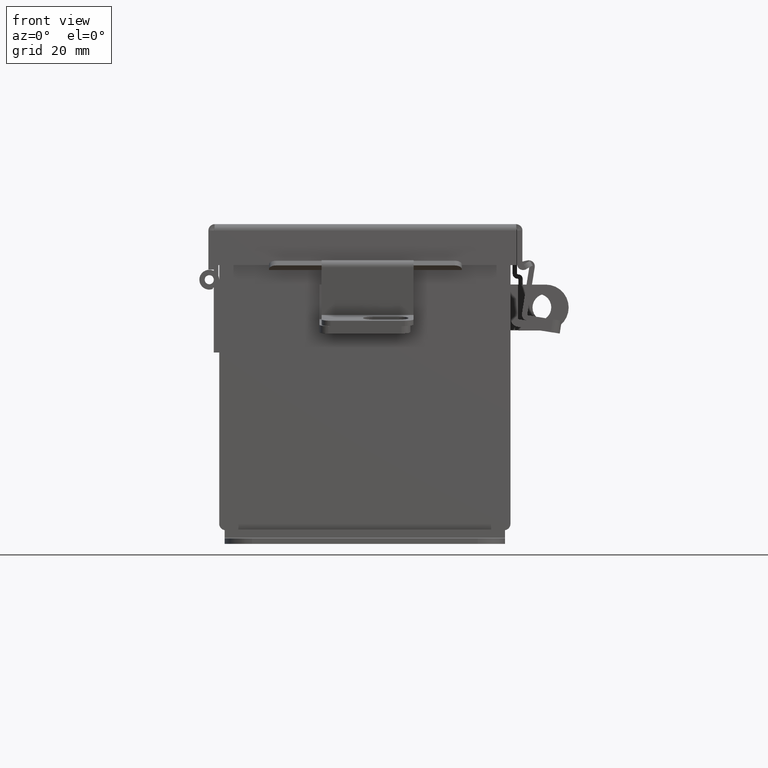
[diagram: clean part render]
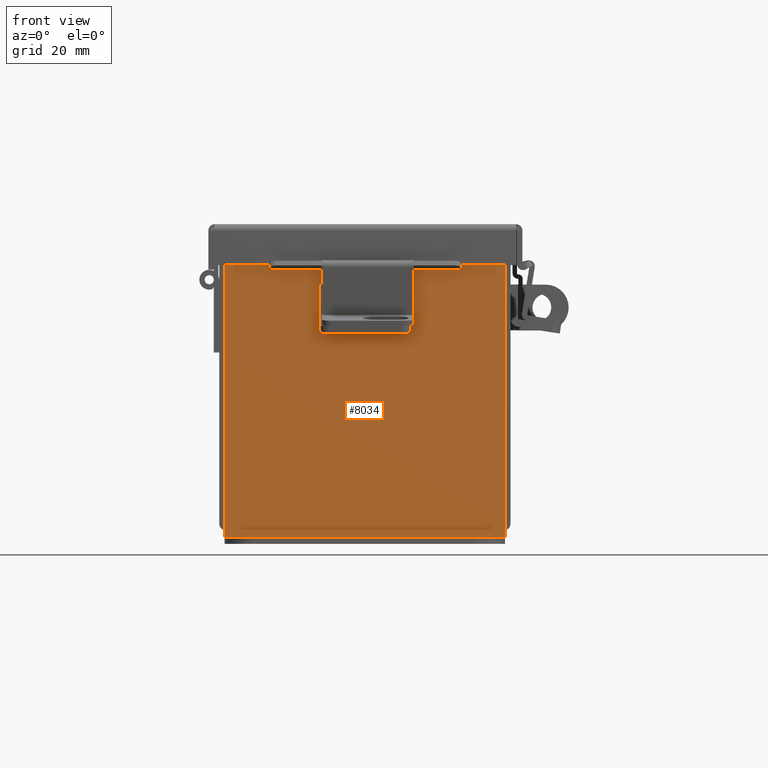
[diagram: same view with one face highlighted and labeled with its STEP entity id]
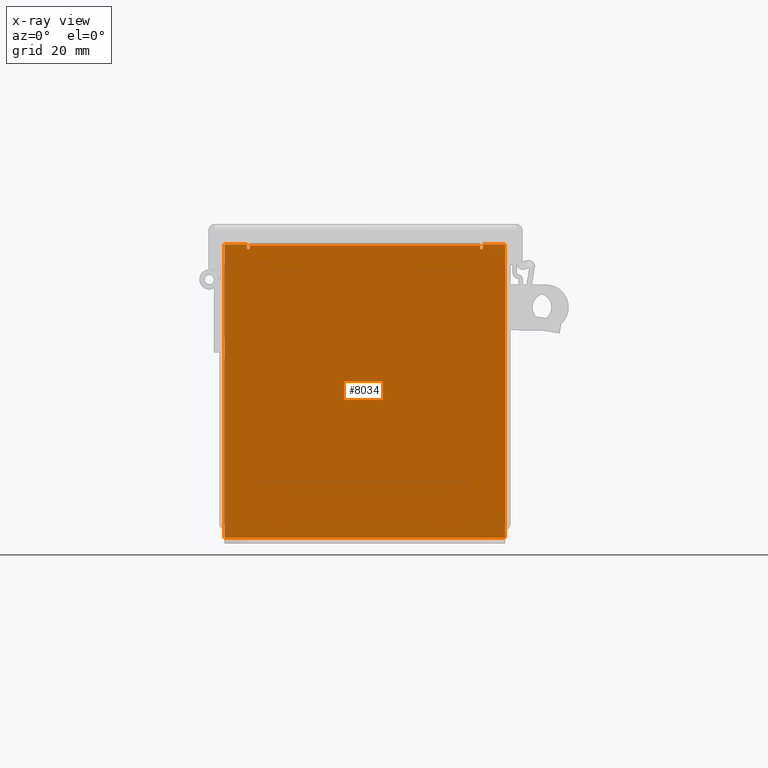
[diagram: x-ray of the same camera — body ghosted, the highlighted face saturated]
A machine part, front view. The second image highlights one B-rep face of the part: STEP entity #8034.
The next image is the same camera in x-ray: the body ghosted, the highlighted face saturated — about 0% of this face is hidden behind the body in this view.
In plain terms, the highlighted planar face has unit normal (-0, 1, -0).
Its self-contained STEP definition (entity closure, byte-faithful):
#66 = DIRECTION ( 'NONE',  ( 1.000000000000000000, 4.910036603141682400E-031, 0.0000000000000000000 ) ) ;
#91 = EDGE_CURVE ( 'NONE', #8929, #13096, #5231, .T. ) ;
#297 = LINE ( 'NONE', #4813, #11626 ) ;
#318 = ORIENTED_EDGE ( 'NONE', *, *, #9378, .F. ) ;
#495 = DIRECTION ( 'NONE',  ( -4.910036603141682400E-031, -1.000000000000000000, -0.0000000000000000000 ) ) ;
#534 = ORIENTED_EDGE ( 'NONE', *, *, #5087, .F. ) ;
#547 = DIRECTION ( 'NONE',  ( 0.0000000000000000000, 0.0000000000000000000, -1.000000000000000000 ) ) ;
#702 = CIRCLE ( 'NONE', #4840, 0.01867500000000003900 ) ;
#854 = VECTOR ( 'NONE', #4676, 39.37007874015748100 ) ;
#942 = DIRECTION ( 'NONE',  ( 0.0000000000000000000, 0.0000000000000000000, 1.000000000000000000 ) ) ;
#1277 = CARTESIAN_POINT ( 'NONE',  ( 1.925299999999998200, 3.824587191129968100E-015, -2.099300000000003100 ) ) ;
#1470 = EDGE_CURVE ( 'NONE', #8524, #3783, #11337, .T. ) ;
#1792 = EDGE_CURVE ( 'NONE', #6410, #8929, #10463, .T. ) ;
#1916 = CARTESIAN_POINT ( 'NONE',  ( -1.925299999999999300, 0.0000000000000000000, 1.925300000000000000 ) ) ;
#1926 = LINE ( 'NONE', #2153, #13240 ) ;
#1940 = VECTOR ( 'NONE', #8063, 39.37007874015748100 ) ;
#2153 = CARTESIAN_POINT ( 'NONE',  ( -1.925300000000001300, 0.0000000000000000000, -2.099300000000000800 ) ) ;
#2303 = CARTESIAN_POINT ( 'NONE',  ( 1.619649999999998000, 4.370956789862821100E-015, 1.874949999999998300 ) ) ;
#2557 = ORIENTED_EDGE ( 'NONE', *, *, #1792, .T. ) ;
#2601 = LINE ( 'NONE', #7508, #8083 ) ;
#2868 = DIRECTION ( 'NONE',  ( 4.910036603141682400E-031, 1.000000000000000000, -0.0000000000000000000 ) ) ;
#2976 = VERTEX_POINT ( 'NONE', #12037 ) ;
#3375 = ORIENTED_EDGE ( 'NONE', *, *, #6607, .F. ) ;
#3478 = VERTEX_POINT ( 'NONE', #7361 ) ;
#3731 = CARTESIAN_POINT ( 'NONE',  ( -1.582300000000001400, 0.0000000000000000000, 1.874949999999998300 ) ) ;
#3783 = VERTEX_POINT ( 'NONE', #1277 ) ;
#3878 = CARTESIAN_POINT ( 'NONE',  ( 1.925300000000000500, 4.370956789862821100E-015, 1.925299999999998500 ) ) ;
#3999 = AXIS2_PLACEMENT_3D ( 'NONE', #9456, #2868, #10537 ) ;
#4016 = CARTESIAN_POINT ( 'NONE',  ( 1.600974999999998000, 4.370956789862821100E-015, 1.874949999999998300 ) ) ;
#4372 = DIRECTION ( 'NONE',  ( 1.000000000000000000, 4.910036603141682400E-031, -0.0000000000000000000 ) ) ;
#4452 = LINE ( 'NONE', #1916, #7350 ) ;
#4570 = CARTESIAN_POINT ( 'NONE',  ( -1.925299999999999300, 0.0000000000000000000, 1.925300000000000000 ) ) ;
#4592 = VERTEX_POINT ( 'NONE', #6919 ) ;
#4626 = EDGE_CURVE ( 'NONE', #4734, #10588, #10681, .T. ) ;
#4676 = DIRECTION ( 'NONE',  ( -5.425715975499976200E-015, 0.0000000000000000000, -1.000000000000000000 ) ) ;
#4734 = VERTEX_POINT ( 'NONE', #11460 ) ;
#4754 = CARTESIAN_POINT ( 'NONE',  ( -1.582300000000001400, 0.0000000000000000000, 0.0000000000000000000 ) ) ;
#4779 = DIRECTION ( 'NONE',  ( 1.000000000000000000, 4.910036603141682400E-031, -0.0000000000000000000 ) ) ;
#4813 = CARTESIAN_POINT ( 'NONE',  ( 1.582299999999998000, 0.0000000000000000000, 0.0000000000000000000 ) ) ;
#4840 = AXIS2_PLACEMENT_3D ( 'NONE', #4016, #11661, #5098 ) ;
#4993 = VECTOR ( 'NONE', #11133, 39.37007874015748100 ) ;
#5087 = EDGE_CURVE ( 'NONE', #6410, #3783, #1926, .T. ) ;
#5098 = DIRECTION ( 'NONE',  ( 0.0000000000000000000, 0.0000000000000000000, -1.000000000000000000 ) ) ;
#5231 = LINE ( 'NONE', #6644, #10370 ) ;
#5501 = VECTOR ( 'NONE', #547, 39.37007874015748100 ) ;
#5547 = EDGE_CURVE ( 'NONE', #2976, #13096, #2601, .T. ) ;
#5576 = CARTESIAN_POINT ( 'NONE',  ( -1.925300000000001300, 0.0000000000000000000, -2.099300000000000800 ) ) ;
#5814 = ORIENTED_EDGE ( 'NONE', *, *, #4626, .F. ) ;
#5836 = ORIENTED_EDGE ( 'NONE', *, *, #12273, .F. ) ;
#5974 = PLANE ( 'NONE',  #7591 ) ;
#6410 = VERTEX_POINT ( 'NONE', #5576 ) ;
#6607 = EDGE_CURVE ( 'NONE', #10597, #3478, #297, .T. ) ;
#6644 = CARTESIAN_POINT ( 'NONE',  ( -1.925299999999999300, 0.0000000000000000000, 1.925300000000000000 ) ) ;
#6794 = EDGE_LOOP ( 'NONE', ( #7522, #5836, #5814, #10676, #3375, #9681, #318, #7854, #13388, #534, #2557, #9669 ) ) ;
#6919 = CARTESIAN_POINT ( 'NONE',  ( 1.619650000000000300, 4.370956789862821100E-015, 1.925299999999998500 ) ) ;
#7025 = CARTESIAN_POINT ( 'NONE',  ( 1.582299999999998000, 4.370956789862821100E-015, 1.874949999999998300 ) ) ;
#7350 = VECTOR ( 'NONE', #13943, 39.37007874015748100 ) ;
#7361 = CARTESIAN_POINT ( 'NONE',  ( 1.582299999999998000, 4.370956789862821100E-015, 1.912299999999998300 ) ) ;
#7508 = CARTESIAN_POINT ( 'NONE',  ( -1.619650000000001400, 0.0000000000000000000, 0.0000000000000000000 ) ) ;
#7522 = ORIENTED_EDGE ( 'NONE', *, *, #5547, .F. ) ;
#7591 = AXIS2_PLACEMENT_3D ( 'NONE', #13636, #495, #8170 ) ;
#7787 = VERTEX_POINT ( 'NONE', #2303 ) ;
#7854 = ORIENTED_EDGE ( 'NONE', *, *, #12362, .T. ) ;
#8032 = CARTESIAN_POINT ( 'NONE',  ( -1.582300000000001400, 1.092739197465705300E-015, 1.912299999999998300 ) ) ;
#8034 = ADVANCED_FACE ( 'NONE', ( #10386 ), #5974, .F. ) ;
#8063 = DIRECTION ( 'NONE',  ( 0.0000000000000000000, 0.0000000000000000000, -1.000000000000000000 ) ) ;
#8083 = VECTOR ( 'NONE', #942, 39.37007874015748100 ) ;
#8126 = DIRECTION ( 'NONE',  ( 0.0000000000000000000, 0.0000000000000000000, 1.000000000000000000 ) ) ;
#8170 = DIRECTION ( 'NONE',  ( 0.0000000000000000000, 0.0000000000000000000, -1.000000000000000000 ) ) ;
#8225 = CARTESIAN_POINT ( 'NONE',  ( 1.925300000000000500, 4.370956789862821100E-015, 1.925299999999998500 ) ) ;
#8415 = CARTESIAN_POINT ( 'NONE',  ( -1.925299999999999300, 0.0000000000000000000, 1.925300000000000000 ) ) ;
#8524 = VERTEX_POINT ( 'NONE', #3878 ) ;
#8566 = CARTESIAN_POINT ( 'NONE',  ( -1.619649999999999100, 0.0000000000000000000, 1.925300000000000000 ) ) ;
#8592 = EDGE_CURVE ( 'NONE', #7787, #10597, #702, .T. ) ;
#8929 = VERTEX_POINT ( 'NONE', #8415 ) ;
#9378 = EDGE_CURVE ( 'NONE', #4592, #7787, #9622, .T. ) ;
#9456 = CARTESIAN_POINT ( 'NONE',  ( -1.600975000000001400, 0.0000000000000000000, 1.874949999999998300 ) ) ;
#9622 = LINE ( 'NONE', #10186, #854 ) ;
#9669 = ORIENTED_EDGE ( 'NONE', *, *, #91, .T. ) ;
#9681 = ORIENTED_EDGE ( 'NONE', *, *, #8592, .F. ) ;
#10169 = VECTOR ( 'NONE', #4779, 39.37007874015748100 ) ;
#10186 = CARTESIAN_POINT ( 'NONE',  ( 1.619649999999988000, 0.0000000000000000000, -1.092739197465705300E-014 ) ) ;
#10370 = VECTOR ( 'NONE', #66, 39.37007874015748100 ) ;
#10386 = FACE_OUTER_BOUND ( 'NONE', #6794, .T. ) ;
#10463 = LINE ( 'NONE', #4570, #4993 ) ;
#10537 = DIRECTION ( 'NONE',  ( 0.0000000000000000000, 0.0000000000000000000, -1.000000000000000000 ) ) ;
#10556 = EDGE_CURVE ( 'NONE', #4734, #3478, #13065, .T. ) ;
#10588 = VERTEX_POINT ( 'NONE', #3731 ) ;
#10597 = VERTEX_POINT ( 'NONE', #7025 ) ;
#10676 = ORIENTED_EDGE ( 'NONE', *, *, #10556, .T. ) ;
#10681 = LINE ( 'NONE', #4754, #1940 ) ;
#11133 = DIRECTION ( 'NONE',  ( 0.0000000000000000000, 0.0000000000000000000, 1.000000000000000000 ) ) ;
#11337 = LINE ( 'NONE', #8225, #5501 ) ;
#11460 = CARTESIAN_POINT ( 'NONE',  ( -1.582300000000001400, 1.092739197465705300E-015, 1.912299999999998300 ) ) ;
#11626 = VECTOR ( 'NONE', #8126, 39.37007874015748100 ) ;
#11661 = DIRECTION ( 'NONE',  ( 4.910036603141682400E-031, 1.000000000000000000, -0.0000000000000000000 ) ) ;
#11989 = CIRCLE ( 'NONE', #3999, 0.01867500000000003900 ) ;
#12037 = CARTESIAN_POINT ( 'NONE',  ( -1.619650000000001400, 0.0000000000000000000, 1.874949999999998800 ) ) ;
#12273 = EDGE_CURVE ( 'NONE', #10588, #2976, #11989, .T. ) ;
#12362 = EDGE_CURVE ( 'NONE', #4592, #8524, #4452, .T. ) ;
#13065 = LINE ( 'NONE', #8032, #10169 ) ;
#13096 = VERTEX_POINT ( 'NONE', #8566 ) ;
#13240 = VECTOR ( 'NONE', #4372, 39.37007874015748100 ) ;
#13388 = ORIENTED_EDGE ( 'NONE', *, *, #1470, .T. ) ;
#13636 = CARTESIAN_POINT ( 'NONE',  ( 0.0000000000000000000, 0.0000000000000000000, 0.0000000000000000000 ) ) ;
#13943 = DIRECTION ( 'NONE',  ( 1.000000000000000000, 4.910036603141682400E-031, 0.0000000000000000000 ) ) ;